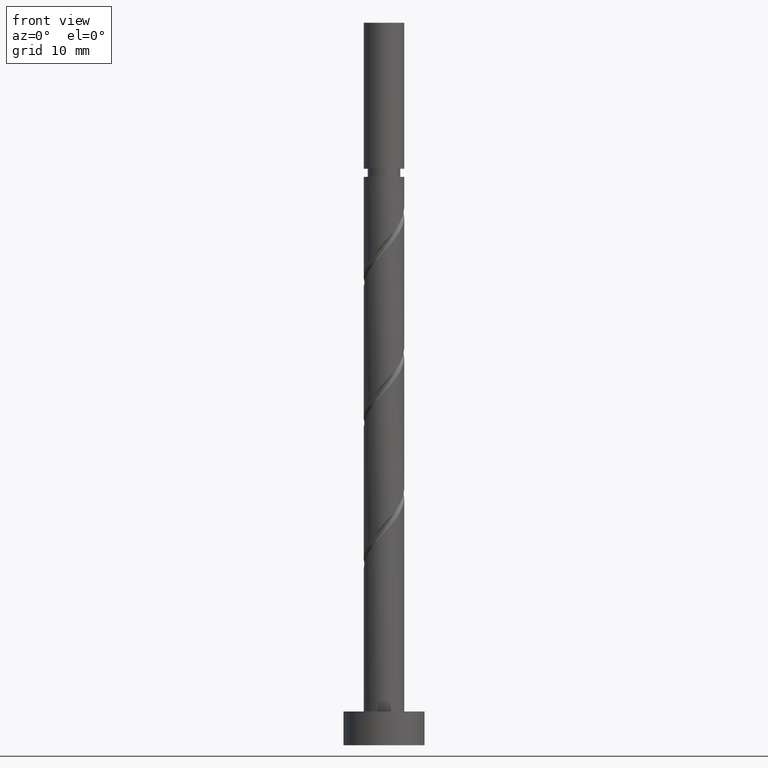
[diagram: clean part render]
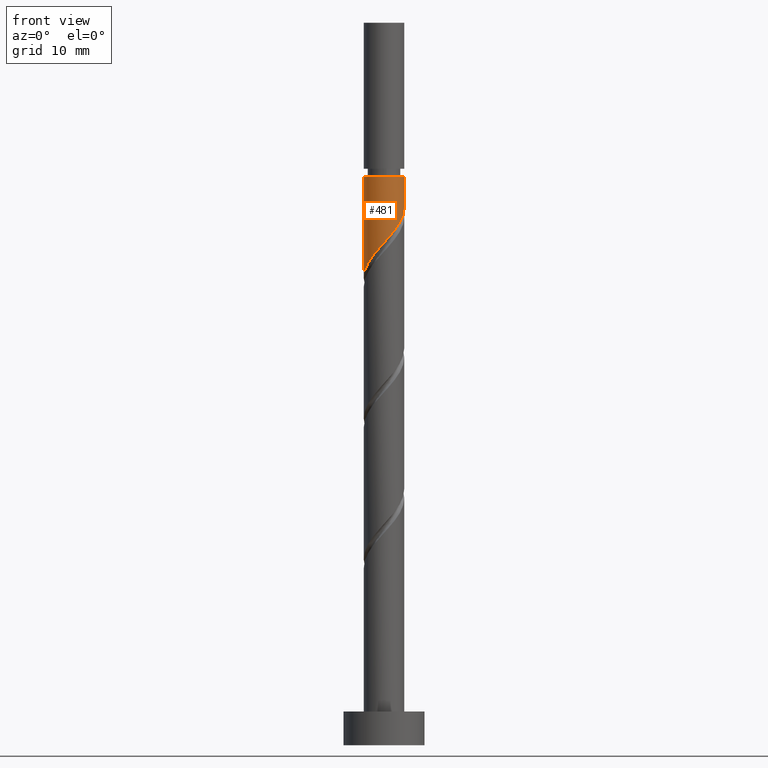
[diagram: same view with one face highlighted and labeled with its STEP entity id]
A machine part, front view. The second image highlights one B-rep face of the part: STEP entity #481.
In plain terms, the highlighted cylindrical surface (edge-blend (fillet) strip) has radius 3 mm, axis along (-0, -0, -1).
Its self-contained STEP definition (entity closure, byte-faithful):
#54 = CARTESIAN_POINT ( 'NONE',  ( -3.000000000000000444, 1.079503400390826017E-15, 69.22421460691475659 ) ) ;
#121 = LINE ( 'NONE', #1105, #1467 ) ;
#158 = CARTESIAN_POINT ( 'NONE',  ( 2.940000000000000835, -0.5969924622639717349, 78.97607883211117041 ) ) ;
#172 = CARTESIAN_POINT ( 'NONE',  ( -3.000000000000000888, -0.1709212123392963301, 69.41372569612201460 ) ) ;
#196 = CARTESIAN_POINT ( 'NONE',  ( -2.532207025513277365, -1.677408196705099108, 71.16357883211115620 ) ) ;
#215 = CIRCLE ( 'NONE', #1315, 3.000000000000002665 ) ;
#220 = LINE ( 'NONE', #948, #555 ) ;
#221 = ORIENTED_EDGE ( 'NONE', *, *, #1314, .T. ) ;
#263 = CARTESIAN_POINT ( 'NONE',  ( 2.377805000122525492, -1.889924352937060181, 77.41357883211118462 ) ) ;
#302 = VERTEX_POINT ( 'NONE', #395 ) ;
#395 = CARTESIAN_POINT ( 'NONE',  ( 3.000000000000002665, 3.673940397442062333E-16, 84.18441216544449901 ) ) ;
#424 = CARTESIAN_POINT ( 'NONE',  ( -1.476283534877584458, -2.611625341554440372, 72.72607883211118462 ) ) ;
#431 = VERTEX_POINT ( 'NONE', #54 ) ;
#481 = ADVANCED_FACE ( 'NONE', ( #1405 ), #898, .T. ) ;
#520 = VERTEX_POINT ( 'NONE', #714 ) ;
#552 = CARTESIAN_POINT ( 'NONE',  ( -3.000000000000000444, 1.079503400390826017E-15, 69.22421460691475659 ) ) ;
#555 = VECTOR ( 'NONE', #1048, 1000.000000000000000 ) ;
#562 = CARTESIAN_POINT ( 'NONE',  ( -2.926619631508481145, -0.8128149918040488142, 70.12191216544451322 ) ) ;
#576 = CARTESIAN_POINT ( 'NONE',  ( -0.5969924622639715128, -2.940000000000000835, 73.76774549877781340 ) ) ;
#579 = AXIS2_PLACEMENT_3D ( 'NONE', #1142, #1525, #815 ) ;
#641 = CARTESIAN_POINT ( 'NONE',  ( 1.245111594254574072, -2.729413328510879477, 75.85107883211117041 ) ) ;
#704 = CARTESIAN_POINT ( 'NONE',  ( 0.3407363920471068175, -2.980586974261064004, 74.80941216544451322 ) ) ;
#705 = EDGE_LOOP ( 'NONE', ( #874, #221, #784, #1504 ) ) ;
#714 = CARTESIAN_POINT ( 'NONE',  ( 3.000000000000000444, -1.379365456054944278E-15, 79.64088127358144220 ) ) ;
#763 = CARTESIAN_POINT ( 'NONE',  ( 2.027606598413812744, -2.211065689225169439, 76.89274549877785603 ) ) ;
#764 = EDGE_CURVE ( 'NONE', #987, #431, #121, .T. ) ;
#784 = ORIENTED_EDGE ( 'NONE', *, *, #764, .T. ) ;
#801 = EDGE_CURVE ( 'NONE', #302, #520, #220, .T. ) ;
#815 = DIRECTION ( 'NONE',  ( -1.000000000000000000, 0.000000000000000000, 0.000000000000000000 ) ) ;
#867 = DIRECTION ( 'NONE',  ( -0.000000000000000000, -0.000000000000000000, -1.000000000000000000 ) ) ;
#874 = ORIENTED_EDGE ( 'NONE', *, *, #801, .F. ) ;
#876 = DIRECTION ( 'NONE',  ( -1.000000000000000000, 0.000000000000000000, 0.000000000000000000 ) ) ;
#885 = CARTESIAN_POINT ( 'NONE',  ( 0.000000000000000000, 0.000000000000000000, 84.18441216544449901 ) ) ;
#898 = CYLINDRICAL_SURFACE ( 'NONE', #579, 3.000000000000000444 ) ;
#907 = CARTESIAN_POINT ( 'NONE',  ( -2.729413328510879477, -1.245111594254574072, 70.64274549877784182 ) ) ;
#915 = CARTESIAN_POINT ( 'NONE',  ( -2.980586974261064004, -0.3407363920471069285, 69.60107883211118462 ) ) ;
#927 = CARTESIAN_POINT ( 'NONE',  ( -2.211065689225169439, -2.027606598413812744, 71.68441216544452743 ) ) ;
#934 = CARTESIAN_POINT ( 'NONE',  ( -3.000000000000002665, 0.000000000000000000, 84.18441216544449901 ) ) ;
#948 = CARTESIAN_POINT ( 'NONE',  ( 3.000000000000000444, 3.673940397442060361E-16, 107.0000000000000000 ) ) ;
#987 = VERTEX_POINT ( 'NONE', #934 ) ;
#1022 = CARTESIAN_POINT ( 'NONE',  ( 0.8128149918040484811, -2.926619631508481145, 75.33024549877784182 ) ) ;
#1045 = CARTESIAN_POINT ( 'NONE',  ( -1.062642716818108291, -2.845445682986353475, 73.24691216544449901 ) ) ;
#1048 = DIRECTION ( 'NONE',  ( -0.000000000000000000, -0.000000000000000000, -1.000000000000000000 ) ) ;
#1105 = CARTESIAN_POINT ( 'NONE',  ( -3.000000000000000444, 0.000000000000000000, 107.0000000000000000 ) ) ;
#1137 = CARTESIAN_POINT ( 'NONE',  ( 2.845445682986353475, -1.062642716818108513, 78.45524549877784182 ) ) ;
#1142 = CARTESIAN_POINT ( 'NONE',  ( 0.000000000000000000, 0.000000000000000000, 107.0000000000000000 ) ) ;
#1160 = CARTESIAN_POINT ( 'NONE',  ( -1.889924352937060181, -2.377805000122525492, 72.20524549877784182 ) ) ;
#1245 = CARTESIAN_POINT ( 'NONE',  ( 1.677408196705099108, -2.532207025513277365, 76.37191216544449901 ) ) ;
#1260 = CARTESIAN_POINT ( 'NONE',  ( 2.999999999999999556, -0.3015113445777683476, 79.30657669817358624 ) ) ;
#1302 = CARTESIAN_POINT ( 'NONE',  ( -0.1313422077098348462, -3.034554317013646862, 74.28857883211119884 ) ) ;
#1314 = EDGE_CURVE ( 'NONE', #302, #987, #215, .T. ) ;
#1315 = AXIS2_PLACEMENT_3D ( 'NONE', #885, #867, #876 ) ;
#1351 = DIRECTION ( 'NONE',  ( -0.000000000000000000, -0.000000000000000000, -1.000000000000000000 ) ) ;
#1363 = CARTESIAN_POINT ( 'NONE',  ( 2.611625341554440372, -1.476283534877585124, 77.93441216544451322 ) ) ;
#1364 = EDGE_CURVE ( 'NONE', #520, #431, #1565, .T. ) ;
#1405 = FACE_OUTER_BOUND ( 'NONE', #705, .T. ) ;
#1467 = VECTOR ( 'NONE', #1351, 1000.000000000000000 ) ;
#1504 = ORIENTED_EDGE ( 'NONE', *, *, #1364, .F. ) ;
#1507 = CARTESIAN_POINT ( 'NONE',  ( 3.000000000000000444, -1.379365456054944278E-15, 79.64088127358144220 ) ) ;
#1525 = DIRECTION ( 'NONE',  ( -0.000000000000000000, -0.000000000000000000, -1.000000000000000000 ) ) ;
#1565 =( BOUNDED_CURVE ( )  B_SPLINE_CURVE ( 2, ( #1507, #1260, #158, #1137, #1363, #263, #763, #1245, #641, #1022, #704, #1302, #576, #1045, #424, #1160, #927, #196, #907, #562, #915, #172, #552 ),
 .UNSPECIFIED., .F., .T. ) 
 B_SPLINE_CURVE_WITH_KNOTS ( ( 3, 2, 2, 2, 2, 2, 2, 2, 2, 2, 2, 3 ),
 ( 0.3045322023138553047, 0.3125000000000000000, 0.3250000000000000111, 0.3375000000000000222, 0.3499999999999999778, 0.3624999999999999889, 0.3750000000000000000, 0.3875000000000000111, 0.4000000000000000222, 0.4124999999999999778, 0.4249999999999999889, 0.4295322023138552492 ),
 .UNSPECIFIED. ) 
 CURVE ( )  GEOMETRIC_REPRESENTATION_ITEM ( )  RATIONAL_B_SPLINE_CURVE ( ( 0.9039174447099282972, 0.9019565955404577062, 0.9090909090909058410, 0.8978984914501221271, 0.9090909090909058410, 0.8978984914501221271, 0.9090909090909058410, 0.8978984914501221271, 0.9090909090909058410, 0.8978984914501221271, 0.9090909090909058410, 0.8978984914501221271, 0.9090909090909058410, 0.8978984914501221271, 0.9090909090909058410, 0.8978984914501221271, 0.9090909090909058410, 0.8978984914501221271, 0.9090909090909058410, 0.8978984914501221271, 0.9090909090909058410, 0.9050328050005702618, 0.9039174447099282972 ) ) 
 REPRESENTATION_ITEM ( '' )  );